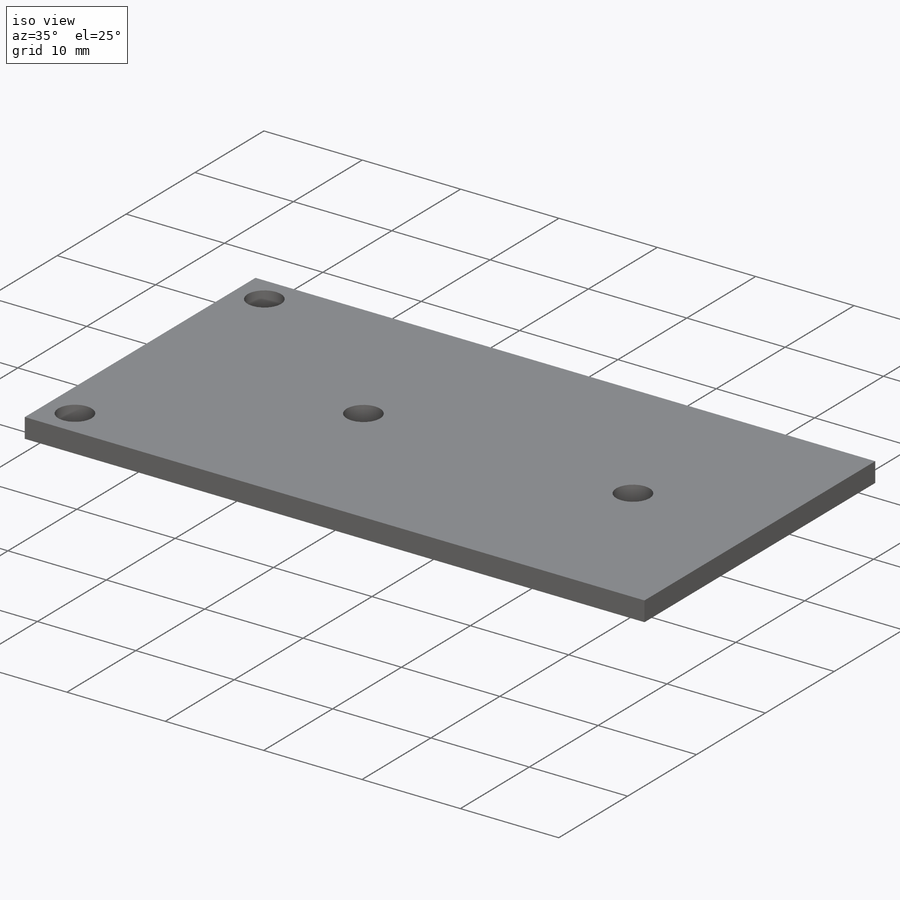
[diagram: iso view]
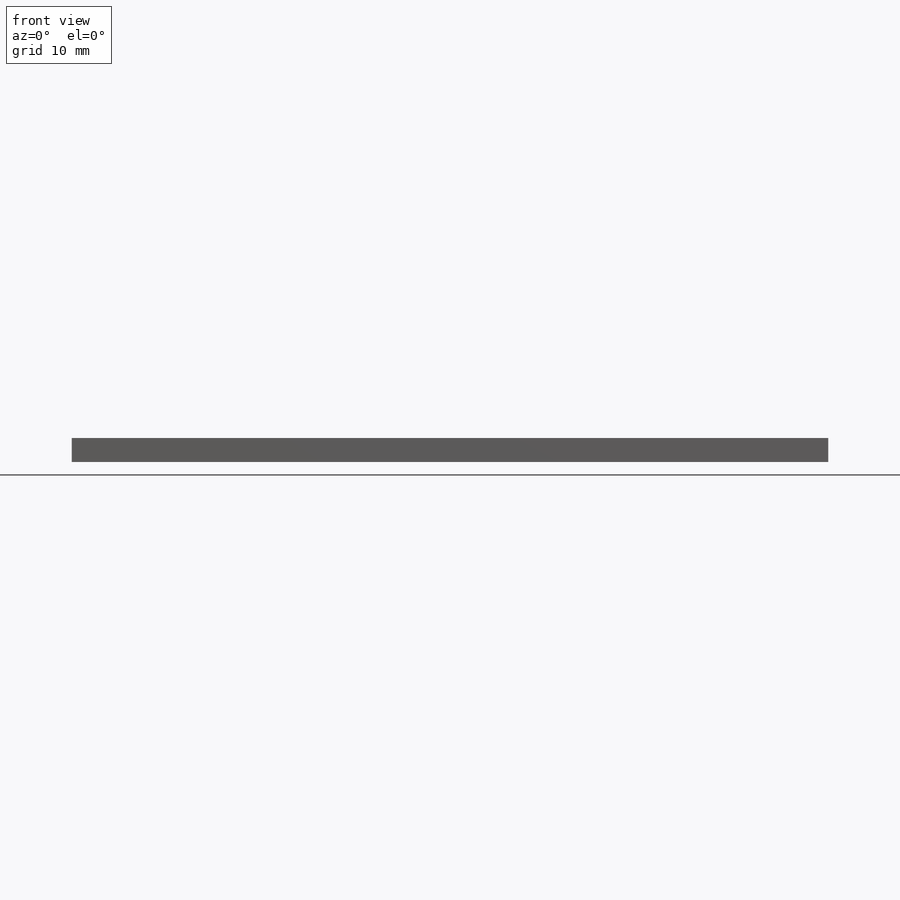
[diagram: front view]
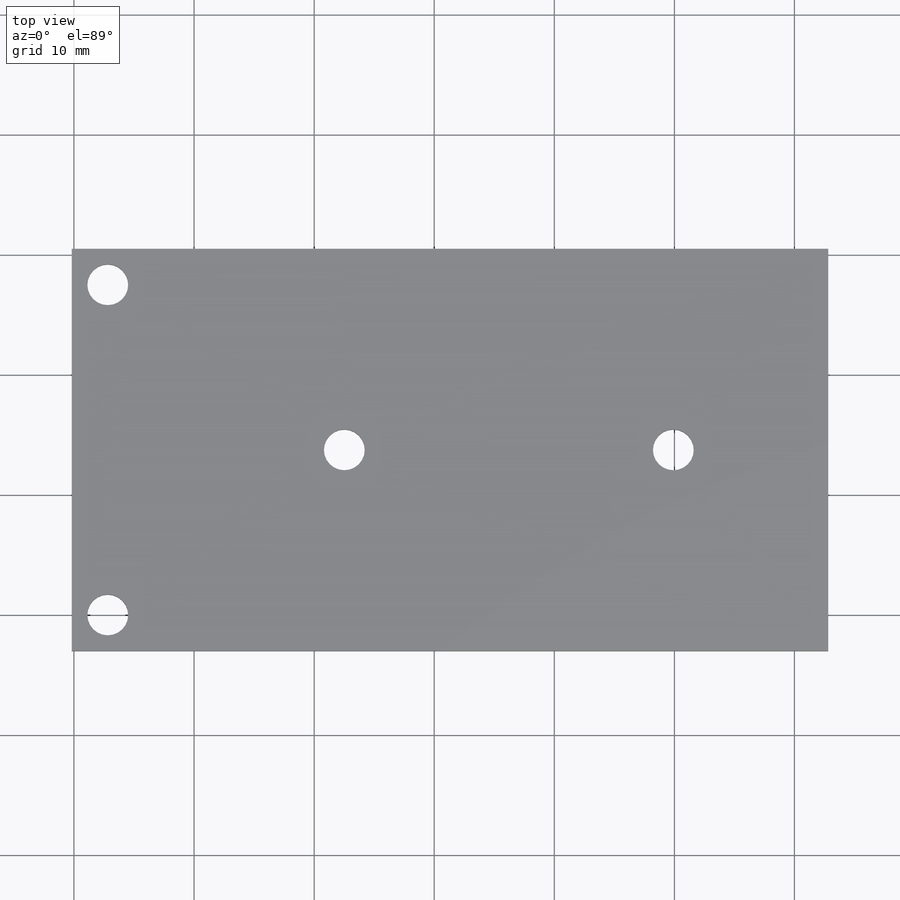
[diagram: top view]
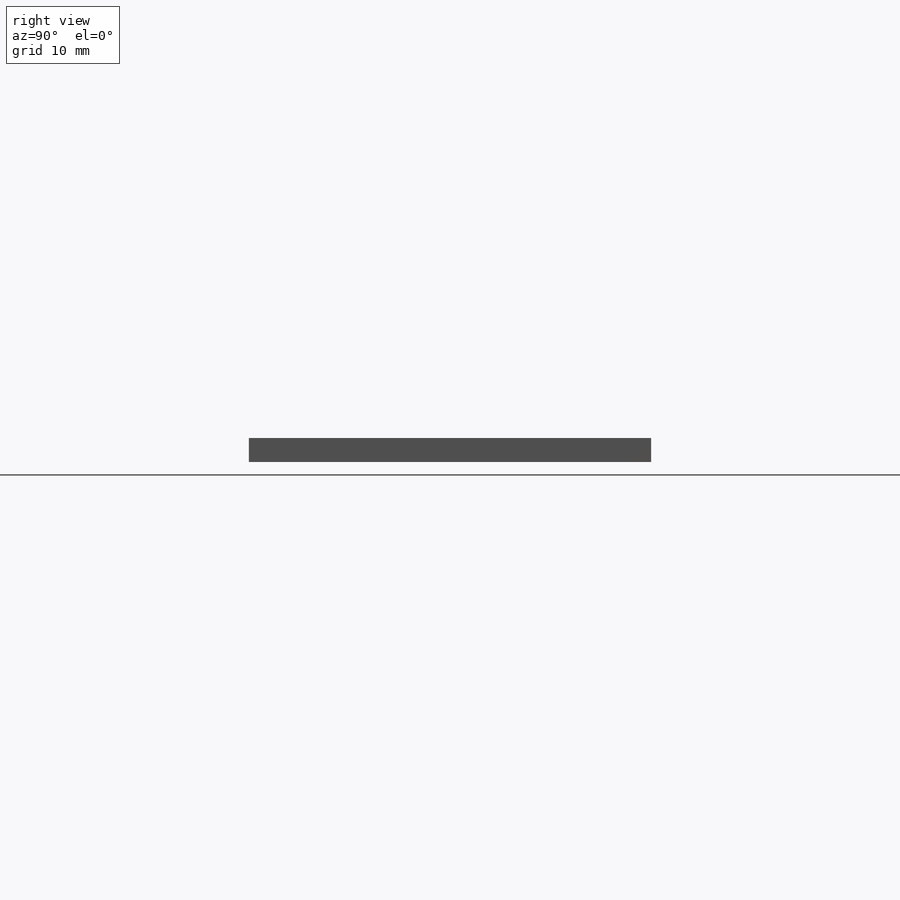
[diagram: right view]
SOLIDWORKS PART (.sldprt)
format: sldprt  version: not decoded by parser v0  size: 191,488 bytes
history: native  units: mm
features: sketch x6, hole x2, material x1, extrude x1, cut_extrude x1 (+12 scaffold rows collapsed)
feature tree (23):
  scaffold x12  (default folders/planes/origin — collapsed)
  material  "Material <not specified>"
  sketch  "Sketch1"  dims[D1=65.0mm D2=33.5mm]
  extrude  "Boss-Extrude1"  Depth=2mm
  hole  "M3 Clearance Hole1"  Diameter=3.4mm Depth=2mm
  sketch  "Sketch3"  dims[D1=3.0mm D2=3.0mm D3=5.0mm D4=5.0mm]
  sketch  "Sketch2"  dims[hole-wizard template sketch: 61 standard entries collapsed; hole parameters above]
  hole  "M3 Clearance Hole2"  Diameter=3.4mm Depth=2mm
  sketch  "3DSketch1"  dims[D1=24.7mm D2=27.4mm D3=16.75mm D4=16.75mm]
  sketch  "Sketch5"  dims[hole-wizard template sketch: 61 standard entries collapsed; hole parameters above]
  sketch  "Sketch6"  dims[D1=2.0mm]
  cut_extrude  "Cut-Extrude1"  [1 undecoded]
decode coverage: 9 of 10 modeling features carry decoded parameters
note: ~ marks probable driven/reference dimensions
note: 1 parameter value undecoded
note: suppression state not decoded; provenance and decode notes live in map.json
